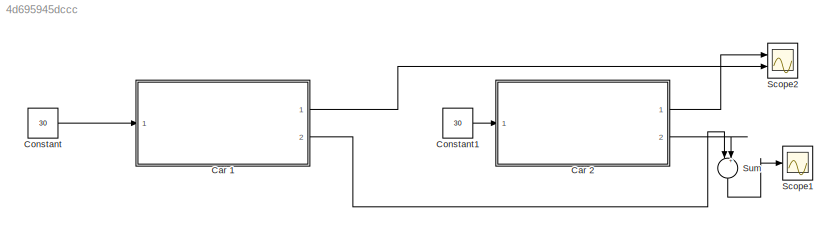
MODEL slx_4d695945dccc
KIND model
CONFIG AbsTol = auto
CONFIG EnableMultiTasking = off
CONFIG FixedStep = auto
CONFIG MaxStep = auto
CONFIG MinStep = auto
CONFIG RelTol = 1e-3
CONFIG SampleTimeConstraint = Unconstrained
CONFIG Solver = VariableStepAuto
CONFIG SolverName = VariableStepAuto
CONFIG StartTime = 0.0
CONFIG StopTime = 10.0
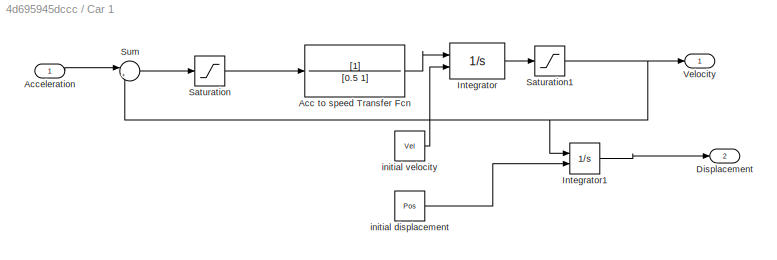
BLOCK [SubSystem] Car 1
  Ports = [1, 2]
  RequestExecContextInheritance = off
BLOCK [TransferFcn] Car 1/Acc to speed Transfer Fcn
  Denominator = [0.5 1]
BLOCK [Inport] Car 1/Acceleration
BLOCK [Outport] Car 1/Displacement
  Port = 2
BLOCK [Integrator] Car 1/Integrator
  InitialConditionSource = external
  Ports = [2, 1]
BLOCK [Integrator] Car 1/Integrator1
  InitialConditionSource = external
  Ports = [2, 1]
BLOCK [Saturate] Car 1/Saturation
  LowerLimit = -3
  UpperLimit = 3
BLOCK [Saturate] Car 1/Saturation1
  LowerLimit = 0
  UpperLimit = inf
BLOCK [Sum] Car 1/Sum
  Inputs = |+-
  Ports = [2, 1]
BLOCK [Outport] Car 1/Velocity 
BLOCK [Constant] Car 1/initial displacement
  Value = Pos
BLOCK [Constant] Car 1/initial velocity
  Value = Vel
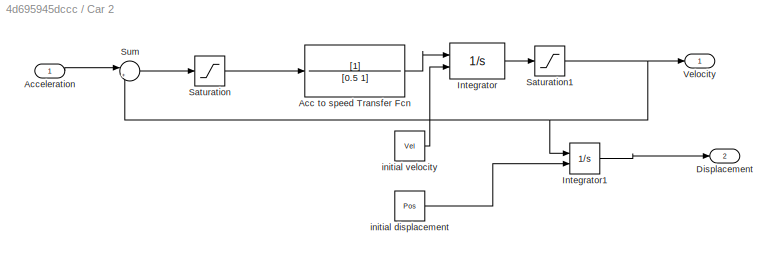
BLOCK [SubSystem] Car 2
  Ports = [1, 2]
  RequestExecContextInheritance = off
BLOCK [TransferFcn] Car 2/Acc to speed Transfer Fcn
  Denominator = [0.5 1]
BLOCK [Inport] Car 2/Acceleration
BLOCK [Outport] Car 2/Displacement
  Port = 2
BLOCK [Integrator] Car 2/Integrator
  InitialConditionSource = external
  Ports = [2, 1]
BLOCK [Integrator] Car 2/Integrator1
  InitialConditionSource = external
  Ports = [2, 1]
BLOCK [Saturate] Car 2/Saturation
  LowerLimit = -3
  UpperLimit = 3
BLOCK [Saturate] Car 2/Saturation1
  LowerLimit = 0
  UpperLimit = inf
BLOCK [Sum] Car 2/Sum
  Inputs = |+-
  Ports = [2, 1]
BLOCK [Outport] Car 2/Velocity 
BLOCK [Constant] Car 2/initial displacement
  Value = Pos
BLOCK [Constant] Car 2/initial velocity
  Value = Vel
BLOCK [Constant] Constant
  Value = 30
BLOCK [Constant] Constant1
  Value = 30
BLOCK [Scope] Scope1
  Floating = off
  NumInputPorts = 1
  Ports = [1]
  ScopeSpecificationString = Simulink.scopes.TimeScopeBlockCfg('CurrentConfiguration', extmgr.ConfigurationSet(extmgr.Configuration('Core','General UI',true),extmgr.Configuration('Core','Source UI',true),extmgr.Configuration('Sources','WiredSimulink',true,'DataLoggingVariableName','ScopeData1'),extmgr.Configuration('Visuals','Time Domain',true,'SerializedDisplays',{struct('MinYLimReal','-1.00000','MaxYLimReal','1.00000','YLab...<+1395ch>
BLOCK [Scope] Scope2
  Floating = off
  NumInputPorts = 2
  Ports = [2]
  ScopeSpecificationString = Simulink.scopes.TimeScopeBlockCfg('CurrentConfiguration', extmgr.ConfigurationSet(extmgr.Configuration('Core','General UI',true),extmgr.Configuration('Core','Source UI',true),extmgr.Configuration('Sources','WiredSimulink',true),extmgr.Configuration('Visuals','Time Domain',true,'SerializedDisplays',{struct('MinYLimReal','7.47491','MaxYLimReal','32.72577','YLabelReal','','MinYLimMag','7.47491','MaxY...<+1416ch>
BLOCK [Sum] Sum
  Inputs = |+-
  NameLocation = left
  Ports = [2, 1]
LINE Car 1/Acc to speed Transfer Fcn:1 -> Car 1/Integrator:1
LINE Car 1/Acceleration:1 -> Car 1/Sum:1
LINE Car 1/Integrator1:1 -> Car 1/Displacement:1
LINE Car 1/Integrator:1 -> Car 1/Saturation1:1
NET Car 1/Saturation1:1 -> Car 1/Integrator1:1, Car 1/Sum:2, Car 1/Velocity :1
LINE Car 1/Saturation:1 -> Car 1/Acc to speed Transfer Fcn:1
LINE Car 1/Sum:1 -> Car 1/Saturation:1
LINE Car 1/initial displacement:1 -> Car 1/Integrator1:2
LINE Car 1/initial velocity:1 -> Car 1/Integrator:2
LINE Car 1:1 -> Scope2:2
LINE Car 1:2 -> Sum:1
LINE Car 2/Acc to speed Transfer Fcn:1 -> Car 2/Integrator:1
LINE Car 2/Acceleration:1 -> Car 2/Sum:1
LINE Car 2/Integrator1:1 -> Car 2/Displacement:1
LINE Car 2/Integrator:1 -> Car 2/Saturation1:1
NET Car 2/Saturation1:1 -> Car 2/Integrator1:1, Car 2/Sum:2, Car 2/Velocity :1
LINE Car 2/Saturation:1 -> Car 2/Acc to speed Transfer Fcn:1
LINE Car 2/Sum:1 -> Car 2/Saturation:1
LINE Car 2/initial displacement:1 -> Car 2/Integrator1:2
LINE Car 2/initial velocity:1 -> Car 2/Integrator:2
LINE Car 2:1 -> Scope2:1
LINE Car 2:2 -> Sum:2
LINE Constant1:1 -> Car 2:1
LINE Constant:1 -> Car 1:1
LINE Sum:1 -> Scope1:1
note: NET lines group one-source signal fan-out (src -> all destinations, sorted); 1:1 wires keep LINE
